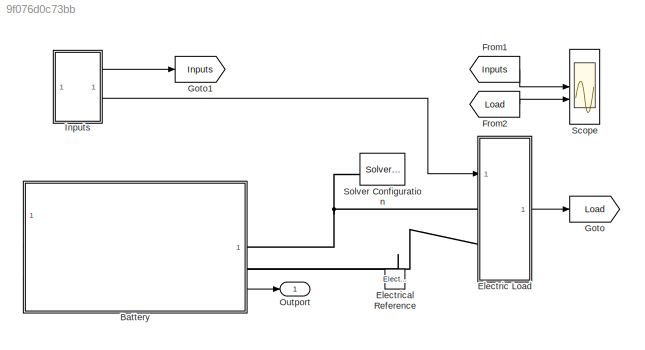
MODEL slx_9f076d0c73bb
KIND model
CONFIG AbsTol = 1e-3
CONFIG EnableMultiTasking = off
CONFIG FixedStep = auto
CONFIG MaxStep = auto
CONFIG MinStep = auto
CONFIG PostLoadFcn = BatteryParameter;
CONFIG RelTol = 1e-3
CONFIG SampleTimeConstraint = Unconstrained
CONFIG SolverName = VariableStepAuto
CONFIG StartTime = 0.0
CONFIG StopTime = 1000
BLOCK [SubSystem] Battery
  PortSchema = {"entries":[{"content":{"sides":[{"content":{"connectorIds":["RConn1","RConn2","Out1"]},"type":"ConnectorPlacement.EquallySpacedRectSide","uuid":"f91b67ed-3fcd-4acc-9438-6c33f3afe53d"},{"content":{"side":"RIGHT"},"type":"ConnectorPlacement.EquallySpacedRectSide","uuid":"cd34001b-c06d-4d7e-b3a3-12141926dfe0"},{"content":{"side":"TOP"},"type":"ConnectorPlacement.EquallySpacedRectSide","uuid":"65858a...<+217ch>
  ReferencedSubsystem = BatteryPlantModel_Table
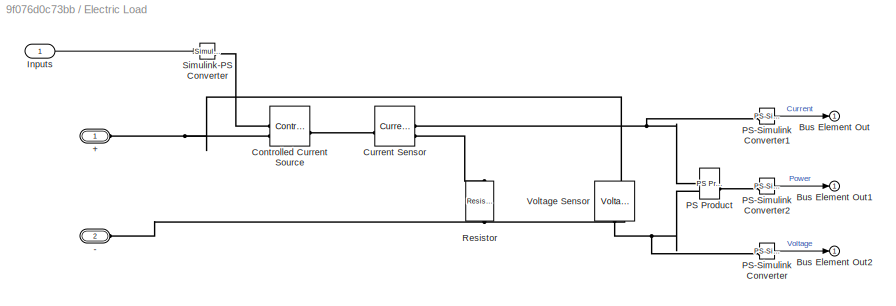
BLOCK [SubSystem] Electric Load
BLOCK [PMIOPort] Electric Load/+
  Side = Left
BLOCK [PMIOPort] Electric Load/-
  Port = 2
  Side = Left
BLOCK [Outport] Electric Load/Bus Element Out
BLOCK [Outport] Electric Load/Bus Element Out1
BLOCK [Outport] Electric Load/Bus Element Out2
BLOCK [Reference] Electric Load/Controlled Current Source  REF=fl_lib/Electrical/Electrical Sources/Controlled Current
Source
  SourceBlock = fl_lib/Electrical/Electrical Sources/Controlled Current\nSource
  SourceType = Controlled Current\nSource
BLOCK [Reference] Electric Load/Current Sensor  REF=fl_lib/Electrical/Electrical Sensors/Current Sensor
  SourceBlock = fl_lib/Electrical/Electrical Sensors/Current Sensor
  SourceType = Current Sensor
BLOCK [Inport] Electric Load/Inputs
BLOCK [Reference] Electric Load/PS Product  REF=fl_lib/Physical Signals/Functions/PS Product
  SourceBlock = fl_lib/Physical Signals/Functions/PS Product
  SourceType = PS Product
BLOCK [Reference] Electric Load/PS-Simulink Converter  REF=nesl_utility/PS-Simulink
Converter
  AttributesFormatString = %<Unit>
  SourceBlock = nesl_utility/PS-Simulink\nConverter
  SourceType = PS-Simulink\nConverter
BLOCK [Reference] Electric Load/PS-Simulink Converter1  REF=nesl_utility/PS-Simulink
Converter
  AttributesFormatString = %<Unit>
  SourceBlock = nesl_utility/PS-Simulink\nConverter
  SourceType = PS-Simulink\nConverter
BLOCK [Reference] Electric Load/PS-Simulink Converter2  REF=nesl_utility/PS-Simulink
Converter
  AttributesFormatString = %<Unit>
  SourceBlock = nesl_utility/PS-Simulink\nConverter
  SourceType = PS-Simulink\nConverter
BLOCK [Reference] Electric Load/Resistor  REF=fl_lib/Electrical/Electrical Elements/Resistor
  NameLocation = left
  SourceBlock = fl_lib/Electrical/Electrical Elements/Resistor
  SourceType = Resistor
BLOCK [Reference] Electric Load/Simulink-PS Converter  REF=nesl_utility/Simulink-PS
Converter
  AttributesFormatString = %<Unit>
  SourceBlock = nesl_utility/Simulink-PS\nConverter
  SourceType = Simulink-PS\nConverter
BLOCK [Reference] Electric Load/Voltage Sensor  REF=fl_lib/Electrical/Electrical Sensors/Voltage Sensor
  NameLocation = left
  SourceBlock = fl_lib/Electrical/Electrical Sensors/Voltage Sensor
  SourceType = Voltage Sensor
BLOCK [Reference] Electrical Reference  REF=fl_lib/Electrical/Electrical Elements/Electrical Reference
  SourceBlock = fl_lib/Electrical/Electrical Elements/Electrical Reference
  SourceType = Electrical Reference
BLOCK [From] From1
  GotoTag = Inputs
BLOCK [From] From2
  GotoTag = Load
BLOCK [Goto] Goto
  GotoTag = Load
BLOCK [Goto] Goto1
  GotoTag = Inputs
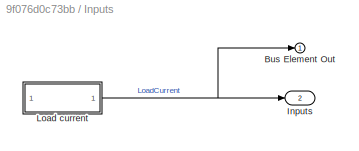
BLOCK [SubSystem] Inputs
BLOCK [Outport] Inputs/Bus Element Out
BLOCK [Outport] Inputs/Inputs
  Port = 2
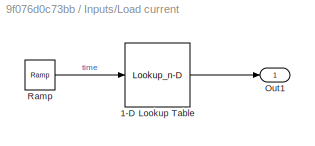
BLOCK [SubSystem] Inputs/Load current
  NameLocation = left
BLOCK [Lookup_n-D] Inputs/Load current/1-D Lookup Table
  BreakpointsForDimension1 = [0              5            5.5              6            6.5              7            7.5              8            8.5              9            9.5             10           10.5             11           11.5             12           12.5             13           13.5             14           14.5             15           15.5             16            114          114.5            115        ...<+5123ch>
  InputPortMap = u0
  InternalRulePriority = Speed
  NumberOfTableDimensions = 1
  RndMeth = Simplest
  Table = [0            0    0.0300526     0.116454     0.253569     0.435763       0.6574     0.912847      1.19647      1.50263      1.82569      2.16003          2.5      2.83997      3.17431      3.49737      3.80353      4.08715       4.3426      4.56424      4.74643      4.88355      4.96995            5            5            5            5            5            5            5            5        ...<+4387ch>
BLOCK [Outport] Inputs/Load current/Out1
BLOCK [Reference] Inputs/Load current/Ramp  REF=simulink/Sources/Ramp
  AttributesFormatString = Slope: %<slope>\nStart time: %<start>\nInitial output: %<InitialOutput>
  SourceBlock = simulink/Sources/Ramp
  SourceType = Ramp
BLOCK [Outport] Outport
  NameLocation = top
BLOCK [Scope] Scope
  Floating = off
  NumInputPorts = 2
  ScopeSpecificationString = Simulink.scopes.TimeScopeBlockCfg('CurrentConfiguration', extmgr.ConfigurationSet(extmgr.Configuration('Core','General UI',true),extmgr.Configuration('Core','Source UI',true),extmgr.Configuration('Sources','WiredSimulink',true,'DataLoggingVariableName','ScopeData1'),extmgr.Configuration('Visuals','Time Domain',true,'SerializedDisplays',{struct('MinYLimReal','-3.5','MaxYLimReal','31.5','YLabelReal'...<+2330ch>
BLOCK [Reference] Solver Configuration  REF=nesl_utility/Solver
Configuration
  NameLocation = top
  SourceBlock = nesl_utility/Solver\nConfiguration
  SourceType = Solver\nConfiguration
LINE Battery:1 -> Outport:1
LINE Electric Load/Inputs:1 -> Electric Load/Simulink-PS Converter:1
LINE Electric Load/PS-Simulink Converter1:1 -> Electric Load/Bus Element Out:1
LINE Electric Load/PS-Simulink Converter2:1 -> Electric Load/Bus Element Out1:1
LINE Electric Load/PS-Simulink Converter:1 -> Electric Load/Bus Element Out2:1
LINE Electric Load:1 -> Goto:1
LINE From1:1 -> Scope:1
LINE From2:1 -> Scope:2
LINE Inputs/Load current/1-D Lookup Table:1 -> Inputs/Load current/Out1:1
LINE Inputs/Load current/Ramp:1 -> Inputs/Load current/1-D Lookup Table:1
NET Inputs/Load current:1 -> Inputs/Bus Element Out:1, Inputs/Inputs:1
LINE Inputs:1 -> Goto1:1
LINE Inputs:2 -> Electric Load:1
PNET net1: Battery:RConn1 -- Electric Load:LConn1 -- Solver Configuration:RConn1
PNET net2: Battery:RConn2 -- Electric Load:LConn2 -- Electrical Reference:LConn1
PNET net3: Electric Load/+:RConn1 -- Electric Load/Controlled Current Source:RConn2 -- Electric Load/Voltage Sensor:LConn1
PNET net4: Electric Load/-:RConn1 -- Electric Load/Resistor:RConn1 -- Electric Load/Voltage Sensor:RConn2
PLINE Electric Load/Controlled Current Source:LConn1 -- Electric Load/Current Sensor:LConn1
PLINE Electric Load/Controlled Current Source:RConn1 -- Electric Load/Simulink-PS Converter:RConn1
PNET net5: Electric Load/Current Sensor:RConn1 -- Electric Load/PS Product:LConn1 -- Electric Load/PS-Simulink Converter1:LConn1
PLINE Electric Load/Current Sensor:RConn2 -- Electric Load/Resistor:LConn1
PNET net6: Electric Load/PS Product:LConn2 -- Electric Load/PS-Simulink Converter:LConn1 -- Electric Load/Voltage Sensor:RConn1
PLINE Electric Load/PS Product:RConn1 -- Electric Load/PS-Simulink Converter2:LConn1
note: NET lines group one-source signal fan-out (src -> all destinations, sorted); 1:1 wires keep LINE; PNET lines group multi-terminal physical nets as a canonical sorted terminal list (undirected conserving connections); 2-terminal nets keep the pairwise PLINE form
